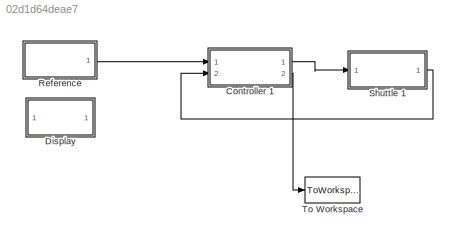
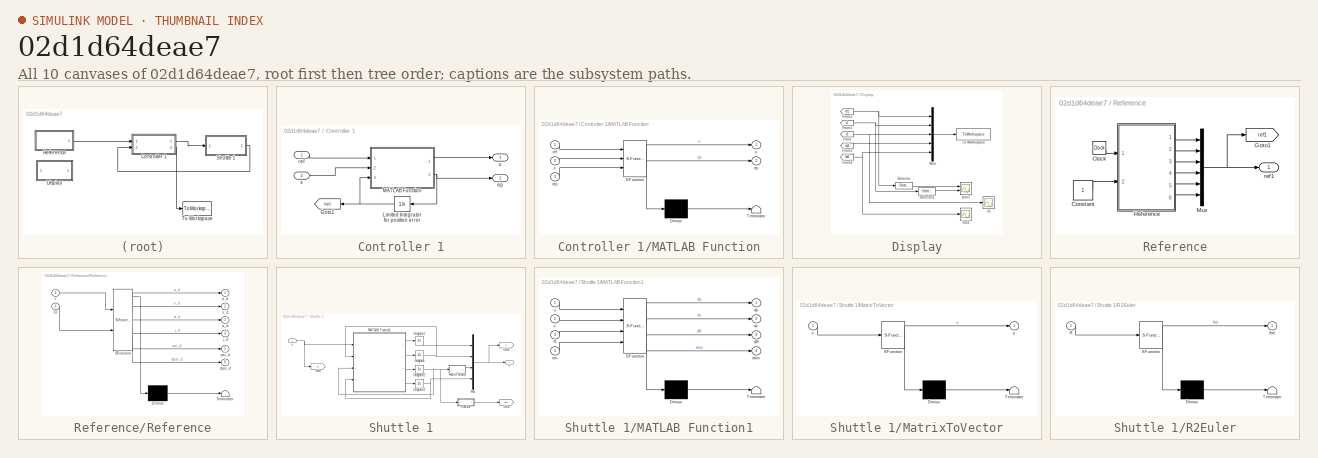
[diagram: thumbnail index - all 10 canvases of the model, root first then tree order]
MODEL slx_02d1d64deae7
KIND model
CONFIG AbsTol = auto
CONFIG EnableMultiTasking = off
CONFIG FixedStep = auto
CONFIG InitFcn = drone_init_4;\niD = 1;
CONFIG MaxStep = 0.05
CONFIG MinStep = 0.001
CONFIG RelTol = 1e-3
CONFIG SampleTimeConstraint = Unconstrained
CONFIG SolverName = VariableStepAuto
CONFIG StartTime = 0.0
CONFIG StopFcn = drone_show_data;
CONFIG StopTime = Param.Tend
BLOCK [SubSystem] Controller 1
  Ports = [2, 2]
  RequestExecContextInheritance = off
BLOCK [Goto] Controller 1/Goto1
  GotoTag = iep1
  NameLocation = top
  TagVisibility = global
BLOCK [Integrator] Controller 1/Limited Integrator for position error
  LimitOutput = on
  LowerSaturationLimit = -100
  Ports = [1, 1]
  UpperSaturationLimit = 100
BLOCK [SubSystem] Controller 1/MATLAB Function
  ErrorFcn = Stateflow.Translate.translate
  PermitHierarchicalResolution = ExplicitOnly
  Ports = [3, 2]
  RequestExecContextInheritance = off
  SFBlockType = MATLAB Function
  TreatAsAtomicUnit = on
BLOCK [Demux] Controller 1/MATLAB Function/ Demux 
  Outputs = 1
  Ports = [1, 1]
BLOCK [S-Function] Controller 1/MATLAB Function/ SFunction 
  EnableBusSupport = on
  FunctionName = sf_sfun
  Parameters = Param
  PortCounts = [3 3]
  Ports = [3, 3]
  SFcnIsStateOwnerBlock = off
  SFunctionDeploymentMode = off
  Tag = Stateflow S-Function 1
BLOCK [Terminator] Controller 1/MATLAB Function/ Terminator 
BLOCK [Outport] Controller 1/MATLAB Function/ep
  Port = 2
BLOCK [Inport] Controller 1/MATLAB Function/iep
  Port = 3
BLOCK [Inport] Controller 1/MATLAB Function/ref
BLOCK [Outport] Controller 1/MATLAB Function/u
BLOCK [Inport] Controller 1/MATLAB Function/x
  Port = 2
BLOCK [Outport] Controller 1/ep
  Port = 2
BLOCK [Inport] Controller 1/ref
BLOCK [Outport] Controller 1/u
BLOCK [Inport] Controller 1/x
  Port = 2
BLOCK [SubSystem] Display
  Ports = []
  RequestExecContextInheritance = off
BLOCK [From] Display/From
  GotoTag = u1
  TagVisibility = global
BLOCK [From] Display/From1
  GotoTag = x1
  TagVisibility = global
BLOCK [From] Display/From2
  GotoTag = ref1
  TagVisibility = global
BLOCK [From] Display/From3
  GotoTag = iep1
  TagVisibility = global
BLOCK [From] Display/From4
  GotoTag = lbd1
  TagVisibility = global
BLOCK [Mux] Display/Mux
  DisplayOption = bar
  Inputs = 5
  Ports = [5, 1]
BLOCK [Selector] Display/Selector
  IndexOptions = Index vector (dialog)
  Indices = [1:3]
  InputPortWidth = 14
  OutputSizes = 1
  Ports = [1, 1]
BLOCK [Selector] Display/Selector1
  IndexOptions = Index vector (dialog)
  Indices = [1:3]
  InputPortWidth = 18
  OutputSizes = 1
  Ports = [1, 1]
BLOCK [ToWorkspace] Display/To Workspace
  FixptAsFi = on
  MaxDataPoints = inf
  Ports = [1]
  SampleTime = -1
  SaveFormat = Structure With Time
  VariableName = simout1
BLOCK [Scope] Display/lbd1
  Floating = off
  NumInputPorts = 1
  Ports = [1]
  ScopeSpecificationString = Simulink.scopes.TimeScopeBlockCfg('CurrentConfiguration', extmgr.ConfigurationSet(extmgr.Configuration('Core','General UI',true),extmgr.Configuration('Core','Source UI',true),extmgr.Configuration('Sources','WiredSimulink',true,'DataLoggingVariableName','ScopeData2'),extmgr.Configuration('Visuals','Time Domain',true,'SerializedDisplays',{struct('MinYLimReal','-0.00982','MaxYLimReal','0.08836','YLab...<+1386ch>
BLOCK [Scope] Display/pos1
  Floating = off
  NumInputPorts = 2
  Ports = [2]
  ScopeSpecificationString = Simulink.scopes.TimeScopeBlockCfg('CurrentConfiguration', extmgr.ConfigurationSet(extmgr.Configuration('Core','General UI',true),extmgr.Configuration('Core','Source UI',true),extmgr.Configuration('Sources','WiredSimulink',true),extmgr.Configuration('Visuals','Time Domain',true,'SerializedDisplays',{struct('MinYLimReal','-3677.78668','MaxYLimReal','409.75408','YLabelReal','','MinYLimMag','  0.00000...<+1485ch>
BLOCK [Scope] Display/u1
  Floating = off
  NumInputPorts = 1
  Ports = [1]
  ScopeSpecificationString = Simulink.scopes.TimeScopeBlockCfg('CurrentConfiguration', extmgr.ConfigurationSet(extmgr.Configuration('Core','General UI',true),extmgr.Configuration('Core','Source UI',true),extmgr.Configuration('Sources','WiredSimulink',true,'DataLoggingVariableName','ScopeData1'),extmgr.Configuration('Visuals','Time Domain',true,'SerializedDisplays',{struct('MinYLimReal','-1.00000','MaxYLimReal','1.00000','YLab...<+1442ch>
BLOCK [SubSystem] Reference
  Ports = [0, 1]
  RequestExecContextInheritance = off
BLOCK [Clock] Reference/Clock
BLOCK [Constant] Reference/Constant
BLOCK [Goto] Reference/Goto1
  GotoTag = ref1
  TagVisibility = global
BLOCK [Mux] Reference/Mux
  DisplayOption = bar
  Inputs = 6
  Ports = [6, 1]
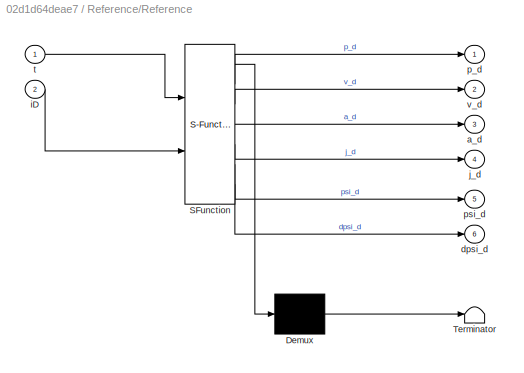
BLOCK [SubSystem] Reference/Reference
  ErrorFcn = Stateflow.Translate.translate
  PermitHierarchicalResolution = ExplicitOnly
  Ports = [2, 6]
  RequestExecContextInheritance = off
  SFBlockType = MATLAB Function
  TreatAsAtomicUnit = on
BLOCK [Demux] Reference/Reference/ Demux 
  Outputs = 1
  Ports = [1, 1]
BLOCK [S-Function] Reference/Reference/ SFunction 
  EnableBusSupport = on
  FunctionName = sf_sfun
  Parameters = Param
  PortCounts = [2 7]
  Ports = [2, 7]
  SFcnIsStateOwnerBlock = off
  SFunctionDeploymentMode = off
  Tag = Stateflow S-Function 2
BLOCK [Terminator] Reference/Reference/ Terminator 
BLOCK [Outport] Reference/Reference/a_d
  Port = 3
BLOCK [Outport] Reference/Reference/dpsi_d
  Port = 6
BLOCK [Inport] Reference/Reference/iD
  Port = 2
BLOCK [Outport] Reference/Reference/j_d
  Port = 4
BLOCK [Outport] Reference/Reference/p_d
BLOCK [Outport] Reference/Reference/psi_d
  Port = 5
BLOCK [Inport] Reference/Reference/t
BLOCK [Outport] Reference/Reference/v_d
  Port = 2
BLOCK [Outport] Reference/ref1
BLOCK [SubSystem] Shuttle 1
  Ports = [1, 1]
  RequestExecContextInheritance = off
BLOCK [Goto] Shuttle 1/Goto
  GotoTag = u1
  TagVisibility = global
BLOCK [Goto] Shuttle 1/Goto1
  GotoTag = x1
  TagVisibility = global
BLOCK [Goto] Shuttle 1/Goto2
  GotoTag = lbd1
  TagVisibility = global
BLOCK [Integrator] Shuttle 1/Integrator
  ContinuousStateAttributes = 'v'
  InitialCondition = Param.v0_1
  Ports = [1, 1]
BLOCK [Integrator] Shuttle 1/Integrator1
  ContinuousStateAttributes = 'p'
  InitialCondition = Param.p0_1
  Ports = [1, 1]
BLOCK [Integrator] Shuttle 1/Integrator2
  ContinuousStateAttributes = 'R'
  InitialCondition = Param.R0_1
  Ports = [1, 1]
BLOCK [Integrator] Shuttle 1/Integrator3
  ContinuousStateAttributes = 'om'
  InitialCondition = Param.om0_1
  Ports = [1, 1]
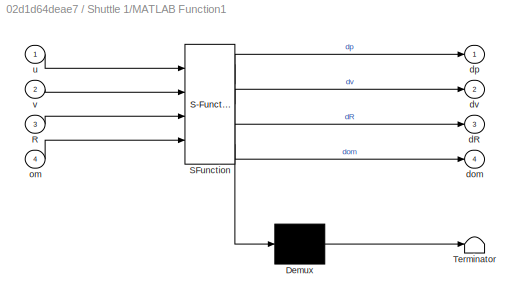
BLOCK [SubSystem] Shuttle 1/MATLAB Function1
  ErrorFcn = Stateflow.Translate.translate
  PermitHierarchicalResolution = ExplicitOnly
  Ports = [4, 4]
  RequestExecContextInheritance = off
  SFBlockType = MATLAB Function
  TreatAsAtomicUnit = on
BLOCK [Demux] Shuttle 1/MATLAB Function1/ Demux 
  Outputs = 1
  Ports = [1, 1]
BLOCK [S-Function] Shuttle 1/MATLAB Function1/ SFunction 
  EnableBusSupport = on
  FunctionName = sf_sfun
  Parameters = Param
  PortCounts = [4 5]
  Ports = [4, 5]
  SFcnIsStateOwnerBlock = off
  SFunctionDeploymentMode = off
  Tag = Stateflow S-Function 3
BLOCK [Terminator] Shuttle 1/MATLAB Function1/ Terminator 
BLOCK [Inport] Shuttle 1/MATLAB Function1/R
  Port = 3
BLOCK [Outport] Shuttle 1/MATLAB Function1/dR
  Port = 3
BLOCK [Outport] Shuttle 1/MATLAB Function1/dom
  Port = 4
BLOCK [Outport] Shuttle 1/MATLAB Function1/dp
BLOCK [Outport] Shuttle 1/MATLAB Function1/dv
  Port = 2
BLOCK [Inport] Shuttle 1/MATLAB Function1/om
  Port = 4
BLOCK [Inport] Shuttle 1/MATLAB Function1/u
BLOCK [Inport] Shuttle 1/MATLAB Function1/v
  Port = 2
BLOCK [SubSystem] Shuttle 1/MatrixToVector
  ErrorFcn = Stateflow.Translate.translate
  PermitHierarchicalResolution = ExplicitOnly
  Ports = [1, 1]
  RequestExecContextInheritance = off
  SFBlockType = MATLAB Function
  TreatAsAtomicUnit = on
BLOCK [Demux] Shuttle 1/MatrixToVector/ Demux 
  Outputs = 1
  Ports = [1, 1]
BLOCK [S-Function] Shuttle 1/MatrixToVector/ SFunction 
  EnableBusSupport = on
  FunctionName = sf_sfun
  PortCounts = [1 2]
  Ports = [1, 2]
  SFcnIsStateOwnerBlock = off
  SFunctionDeploymentMode = off
  Tag = Stateflow S-Function 4
BLOCK [Terminator] Shuttle 1/MatrixToVector/ Terminator 
BLOCK [Inport] Shuttle 1/MatrixToVector/u
BLOCK [Outport] Shuttle 1/MatrixToVector/y
  VectorParamsAs1DForOutWhenUnconnected = off
BLOCK [Mux] Shuttle 1/Mux
  DisplayOption = bar
  Ports = [4, 1]
BLOCK [SubSystem] Shuttle 1/R2Euler
  ErrorFcn = Stateflow.Translate.translate
  PermitHierarchicalResolution = ExplicitOnly
  Ports = [1, 1]
  RequestExecContextInheritance = off
  SFBlockType = MATLAB Function
  TreatAsAtomicUnit = on
BLOCK [Demux] Shuttle 1/R2Euler/ Demux 
  Outputs = 1
  Ports = [1, 1]
BLOCK [S-Function] Shuttle 1/R2Euler/ SFunction 
  EnableBusSupport = on
  FunctionName = sf_sfun
  PortCounts = [1 2]
  Ports = [1, 2]
  SFcnIsStateOwnerBlock = off
  SFunctionDeploymentMode = off
  Tag = Stateflow S-Function 5
BLOCK [Terminator] Shuttle 1/R2Euler/ Terminator 
BLOCK [Inport] Shuttle 1/R2Euler/R
BLOCK [Outport] Shuttle 1/R2Euler/lbd
  VectorParamsAs1DForOutWhenUnconnected = off
BLOCK [Inport] Shuttle 1/u
BLOCK [Outport] Shuttle 1/x
BLOCK [ToWorkspace] To Workspace
  FixptAsFi = on
  MaxDataPoints = inf
  Ports = [1]
  SampleTime = -1
  SaveFormat = Structure With Time
  VariableName = simout
NET Controller 1/Limited Integrator for position error:1 -> Controller 1/Goto1:1, Controller 1/MATLAB Function:3
LINE Controller 1/MATLAB Function:1 -> Controller 1/u:1
NET Controller 1/MATLAB Function:2 -> Controller 1/Limited Integrator for position error:1, Controller 1/ep:1
LINE Controller 1/ref:1 -> Controller 1/MATLAB Function:1
LINE Controller 1/x:1 -> Controller 1/MATLAB Function:2
LINE Controller 1:1 -> Shuttle 1:1
LINE Controller 1:2 -> To Workspace:1
NET Display/From1:1 -> Display/Mux:2, Display/Selector1:1
NET Display/From2:1 -> Display/Mux:1, Display/Selector:1
LINE Display/From3:1 -> Display/Mux:4
NET Display/From4:1 -> Display/Mux:5, Display/lbd1:1
NET Display/From:1 -> Display/Mux:3, Display/u1:1
LINE Display/Mux:1 -> Display/To Workspace:1
LINE Display/Selector1:1 -> Display/pos1:2
LINE Display/Selector:1 -> Display/pos1:1
LINE Reference/Clock:1 -> Reference/Reference:1
LINE Reference/Constant:1 -> Reference/Reference:2
NET Reference/Mux:1 -> Reference/Goto1:1, Reference/ref1:1
LINE Reference/Reference:1 -> Reference/Mux:1
LINE Reference/Reference:2 -> Reference/Mux:2
LINE Reference/Reference:3 -> Reference/Mux:3
LINE Reference/Reference:4 -> Reference/Mux:4
LINE Reference/Reference:5 -> Reference/Mux:5
LINE Reference/Reference:6 -> Reference/Mux:6
LINE Reference:1 -> Controller 1:1
LINE Shuttle 1/Integrator1:1 -> Shuttle 1/Mux:1
NET Shuttle 1/Integrator2:1 -> Shuttle 1/MATLAB Function1:3, Shuttle 1/MatrixToVector:1, Shuttle 1/R2Euler:1
NET Shuttle 1/Integrator3:1 -> Shuttle 1/MATLAB Function1:4, Shuttle 1/Mux:4
NET Shuttle 1/Integrator:1 -> Shuttle 1/MATLAB Function1:2, Shuttle 1/Mux:2
LINE Shuttle 1/MATLAB Function1:1 -> Shuttle 1/Integrator1:1
LINE Shuttle 1/MATLAB Function1:2 -> Shuttle 1/Integrator:1
LINE Shuttle 1/MATLAB Function1:3 -> Shuttle 1/Integrator2:1
LINE Shuttle 1/MATLAB Function1:4 -> Shuttle 1/Integrator3:1
LINE Shuttle 1/MatrixToVector:1 -> Shuttle 1/Mux:3
NET Shuttle 1/Mux:1 -> Shuttle 1/Goto1:1, Shuttle 1/x:1
LINE Shuttle 1/R2Euler:1 -> Shuttle 1/Goto2:1
NET Shuttle 1/u:1 -> Shuttle 1/Goto:1, Shuttle 1/MATLAB Function1:1
LINE Shuttle 1:1 -> Controller 1:2
note: NET lines group one-source signal fan-out (src -> all destinations, sorted); 1:1 wires keep LINE
CHART Controller 1/MATLAB Function states=1 transitions=1
  STATE_LABEL 'eML_blk_kernel()'
  STATE_LABEL 'SCRIPT:\nfunction [u,ep] = controller(ref,x,iep,Param)\n    \n    p = x(1:3,1);\n    v = x(4:6,1);\n    R = reshape(x(7:15,1),3,3);\n    om = x(16:18,1);\n\n    p_d = ref(1:3,1);\n    v_d = ref(4:6,1);\n    a_d = ref(7:9,1);\n    j_d = ref(10:12,1);\n    psi_d = ref(13,1);\n    dpsi_d = ref(14,1);\n\n    [T,tau,ep] = drone_mellinger_ctrl(p,v,R,om,Param,p_d,psi_d,iep,v_d,dpsi_d,a_d,j_d);\n\n    u = [T;tau];\n    \nen...<+1ch>'
CHART Reference/Reference states=1 transitions=1
  STATE_LABEL 'eML_blk_kernel()'
  STATE_LABEL 'SCRIPT:\nfunction [p_d,v_d,a_d,j_d,psi_d,dpsi_d] = get_ref(t,iD,Param)\n    \n    [p_d,v_d,a_d,j_d,psi_d,dpsi_d] = gen_reference(t,iD,Param);\n\nend\n'
CHART Shuttle 1/MATLAB Function1 states=1 transitions=1
  STATE_LABEL 'eML_blk_kernel()'
  STATE_LABEL 'SCRIPT:\nfunction [dp,dv,dR,dom] = dynamics(u,v,R,om,Param)\n        \n    T = u(1,1);\n    tau = u(2:4,1);\n    [dp,dv,dR,dom] = drone_3dfull_dyn(v,R,om,T,tau,Param);\n    \nend\n'
CHART Shuttle 1/MatrixToVector states=1 transitions=1
  STATE_LABEL 'eML_blk_kernel()'
  STATE_LABEL 'SCRIPT:\nfunction y = fcn(u)\n\ny = u(:);\n'
CHART Shuttle 1/R2Euler states=1 transitions=1
  STATE_LABEL 'eML_blk_kernel()'
  STATE_LABEL 'SCRIPT:\nfunction lbd = fcn(R)\n\nlbd = R2Euler(R);\n'
CHART  states=0 transitions=0
CHART  states=0 transitions=0
CHART  states=0 transitions=0
CHART  states=0 transitions=0
CHART  states=0 transitions=0
